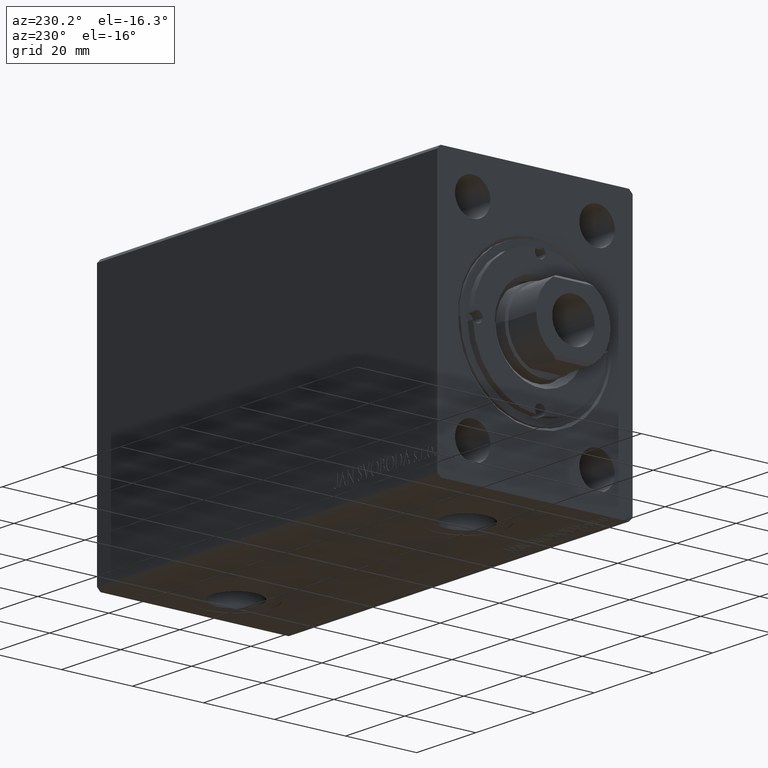
[diagram: clean part render]
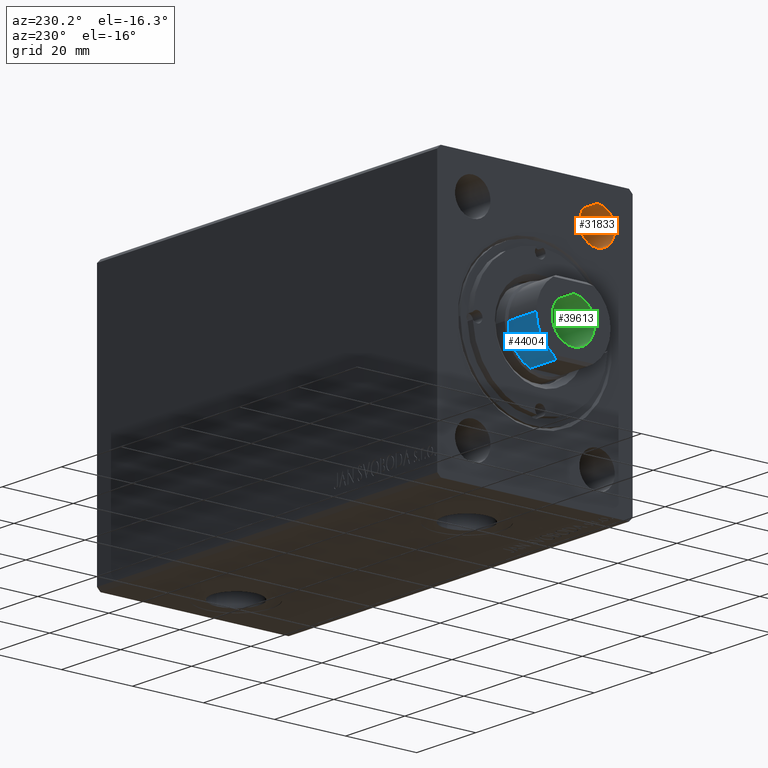
[diagram: same view with three faces highlighted in distinct colors, each labeled with its STEP entity id]
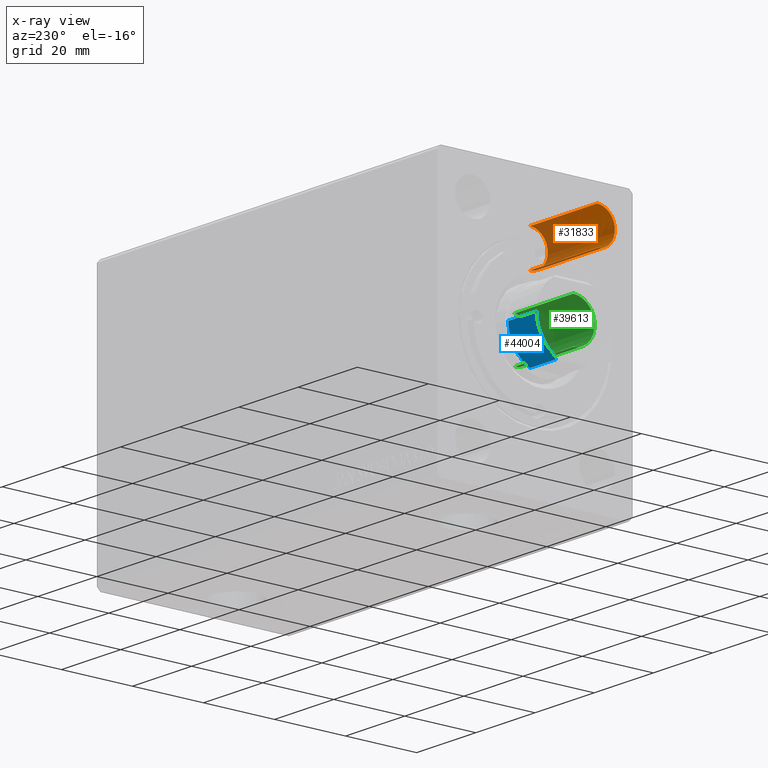
[diagram: x-ray of the same camera — body ghosted, the three highlighted faces saturated]
A machine part, auxiliary view with three faces highlighted in distinct colors.
The next image is the same camera in x-ray (body ghosted, the three faces saturated) — at least one of them is partly hidden behind the body in this view.
Their STEP definitions:

[orange] entity #31833 — the highlighted cylindrical surface (edge-blend (fillet) strip) has radius 5 mm, axis along (-1, -0, -0).
#757 = AXIS2_PLACEMENT_3D ( 'NONE', #25590, #8176, #15324 ) ;
#1197 = CARTESIAN_POINT ( 'NONE',  ( 0.000000000000000000, -17.50000000000000000, 22.50000000000000711 ) ) ;
#1198 = CARTESIAN_POINT ( 'NONE',  ( 1.224646799147350495E-16, -17.50000000000000000, 27.50000000000000355 ) ) ;
#6743 = CARTESIAN_POINT ( 'NONE',  ( 0.000000000000000000, -17.50000000000000000, 27.50000000000000355 ) ) ;
#7871 = CARTESIAN_POINT ( 'NONE',  ( 1.224646799147350495E-16, -17.50000000000000000, 22.50000000000000711 ) ) ;
#8176 = DIRECTION ( 'NONE',  ( -1.000000000000000000, -0.000000000000000000, -0.000000000000000000 ) ) ;
#9430 = ORIENTED_EDGE ( 'NONE', *, *, #24915, .F. ) ;
#10330 = LINE ( 'NONE', #27503, #13376 ) ;
#13376 = VECTOR ( 'NONE', #37807, 1000.000000000000000 ) ;
#14133 = FACE_OUTER_BOUND ( 'NONE', #40502, .T. ) ;
#14424 = LINE ( 'NONE', #1197, #33466 ) ;
#15324 = DIRECTION ( 'NONE',  ( 0.000000000000000000, 0.000000000000000000, 1.000000000000000000 ) ) ;
#15392 = EDGE_CURVE ( 'NONE', #31113, #24310, #10330, .T. ) ;
#15480 = ORIENTED_EDGE ( 'NONE', *, *, #18430, .T. ) ;
#17851 = VERTEX_POINT ( 'NONE', #31925 ) ;
#18430 = EDGE_CURVE ( 'NONE', #19340, #24310, #42008, .T. ) ;
#19340 = VERTEX_POINT ( 'NONE', #7871 ) ;
#20019 = CIRCLE ( 'NONE', #757, 4.999999999999997335 ) ;
#20282 = EDGE_CURVE ( 'NONE', #17851, #19340, #14424, .T. ) ;
#20616 = AXIS2_PLACEMENT_3D ( 'NONE', #6743, #34007, #27741 ) ;
#23617 = ORIENTED_EDGE ( 'NONE', *, *, #15392, .F. ) ;
#24310 = VERTEX_POINT ( 'NONE', #25096 ) ;
#24654 = DIRECTION ( 'NONE',  ( -1.000000000000000000, -0.000000000000000000, -0.000000000000000000 ) ) ;
#24915 = EDGE_CURVE ( 'NONE', #17851, #31113, #20019, .T. ) ;
#25096 = CARTESIAN_POINT ( 'NONE',  ( 1.224646799147350495E-16, -17.50000000000000000, 32.50000000000000000 ) ) ;
#25590 = CARTESIAN_POINT ( 'NONE',  ( 22.67000000000000171, -17.50000000000000000, 27.50000000000000355 ) ) ;
#27503 = CARTESIAN_POINT ( 'NONE',  ( 0.000000000000000000, -17.50000000000000000, 32.50000000000000000 ) ) ;
#27741 = DIRECTION ( 'NONE',  ( 0.000000000000000000, 0.000000000000000000, 1.000000000000000000 ) ) ;
#28460 = DIRECTION ( 'NONE',  ( -1.000000000000000000, -0.000000000000000000, -0.000000000000000000 ) ) ;
#31113 = VERTEX_POINT ( 'NONE', #34444 ) ;
#31833 = ADVANCED_FACE ( 'NONE', ( #14133 ), #37382, .F. ) ;
#31925 = CARTESIAN_POINT ( 'NONE',  ( 22.67000000000000171, -17.50000000000000000, 22.50000000000001066 ) ) ;
#33466 = VECTOR ( 'NONE', #24654, 1000.000000000000000 ) ;
#34007 = DIRECTION ( 'NONE',  ( -1.000000000000000000, -0.000000000000000000, -0.000000000000000000 ) ) ;
#34444 = CARTESIAN_POINT ( 'NONE',  ( 22.67000000000000171, -17.50000000000000000, 32.50000000000000000 ) ) ;
#36772 = ORIENTED_EDGE ( 'NONE', *, *, #20282, .T. ) ;
#37012 = AXIS2_PLACEMENT_3D ( 'NONE', #1198, #28460, #42087 ) ;
#37382 = CYLINDRICAL_SURFACE ( 'NONE', #20616, 4.999999999999997335 ) ;
#37807 = DIRECTION ( 'NONE',  ( -1.000000000000000000, -0.000000000000000000, -0.000000000000000000 ) ) ;
#40502 = EDGE_LOOP ( 'NONE', ( #9430, #36772, #15480, #23617 ) ) ;
#42008 = CIRCLE ( 'NONE', #37012, 4.999999999999997335 ) ;
#42087 = DIRECTION ( 'NONE',  ( 0.000000000000000000, 0.000000000000000000, 1.000000000000000000 ) ) ;

[blue] entity #44004 — the highlighted cylindrical surface (partial cylindrical patch) has radius 10.46 mm, axis along (-1, 0, 0).
#914 = LINE ( 'NONE', #21695, #18666 ) ;
#2022 = CARTESIAN_POINT ( 'NONE',  ( 0.000000000000000000, -10.46000000000001684, 98.00000000000000000 ) ) ;
#3399 = VECTOR ( 'NONE', #37991, 1000.000000000000000 ) ;
#3977 = CARTESIAN_POINT ( 'NONE',  ( 9.056889589612556080, -5.256118063110226224, 97.73311041038742530 ) ) ;
#4268 = DIRECTION ( 'NONE',  ( -0.000000000000000000, -1.815292619434271736E-16, 1.000000000000000000 ) ) ;
#4541 = EDGE_CURVE ( 'NONE', #21470, #16571, #20621, .T. ) ;
#4663 = CARTESIAN_POINT ( 'NONE',  ( 8.789999999999997371, -5.669876541865813024, 98.00000000000000000 ) ) ;
#6509 = ORIENTED_EDGE ( 'NONE', *, *, #17320, .T. ) ;
#7335 = CARTESIAN_POINT ( 'NONE',  ( 8.789999999999997371, -5.669876541865813024, 98.00000000000000000 ) ) ;
#8919 =( BOUNDED_CURVE ( )  B_SPLINE_CURVE ( 3, ( #13844, #35054, #3977, #7335 ),
 .UNSPECIFIED., .F., .T. ) 
 B_SPLINE_CURVE_WITH_KNOTS ( ( 4, 4 ),
 ( 3.573373807102884214, 3.714471135698167448 ),
 .UNSPECIFIED. ) 
 CURVE ( )  GEOMETRIC_REPRESENTATION_ITEM ( )  RATIONAL_B_SPLINE_CURVE ( ( 1.000000000000000000, 0.9983416499762383101, 0.9983416499762383101, 1.000000000000000000 ) ) 
 REPRESENTATION_ITEM ( '' )  );
#9300 = AXIS2_PLACEMENT_3D ( 'NONE', #28227, #41849, #11268 ) ;
#9909 = FACE_OUTER_BOUND ( 'NONE', #37420, .T. ) ;
#10156 = CARTESIAN_POINT ( 'NONE',  ( 0.000000000000000000, -1.778986767045586311E-14, 98.00000000000000000 ) ) ;
#10736 = LINE ( 'NONE', #24335, #3399 ) ;
#11268 = DIRECTION ( 'NONE',  ( 0.000000000000000000, -1.000000000000000000, 0.000000000000000000 ) ) ;
#11369 = AXIS2_PLACEMENT_3D ( 'NONE', #10156, #37406, #17291 ) ;
#11805 = ORIENTED_EDGE ( 'NONE', *, *, #35308, .T. ) ;
#12601 = DIRECTION ( 'NONE',  ( 0.000000000000000000, -1.000000000000000000, 0.000000000000000000 ) ) ;
#13844 = CARTESIAN_POINT ( 'NONE',  ( 9.500000000000000000, -4.377396486497445061, 97.29000000000003467 ) ) ;
#15959 = CARTESIAN_POINT ( 'NONE',  ( 0.000000000000000000, -1.778986767045586311E-14, 98.00000000000000000 ) ) ;
#16169 = DIRECTION ( 'NONE',  ( -0.000000000000000000, -1.815292619434271736E-16, 1.000000000000000000 ) ) ;
#16571 = VERTEX_POINT ( 'NONE', #4663 ) ;
#16833 = CYLINDRICAL_SURFACE ( 'NONE', #17985, 10.46000000000000085 ) ;
#17291 = DIRECTION ( 'NONE',  ( 0.000000000000000000, -1.000000000000000000, 0.000000000000000000 ) ) ;
#17320 = EDGE_CURVE ( 'NONE', #26560, #18791, #10736, .T. ) ;
#17985 = AXIS2_PLACEMENT_3D ( 'NONE', #15959, #16169, #12601 ) ;
#18666 = VECTOR ( 'NONE', #4268, 1000.000000000000000 ) ;
#18791 = VERTEX_POINT ( 'NONE', #20490 ) ;
#20490 = CARTESIAN_POINT ( 'NONE',  ( 9.500000000000000000, -4.377396486497445061, 97.29000000000003467 ) ) ;
#20621 = CIRCLE ( 'NONE', #11369, 10.45999999999999908 ) ;
#20999 = CARTESIAN_POINT ( 'NONE',  ( 1.314046015485110262E-15, -10.46000000000001684, 88.50000000000001421 ) ) ;
#21470 = VERTEX_POINT ( 'NONE', #2022 ) ;
#21695 = CARTESIAN_POINT ( 'NONE',  ( 0.000000000000000000, -10.46000000000001862, 98.00000000000000000 ) ) ;
#21897 = ORIENTED_EDGE ( 'NONE', *, *, #26897, .F. ) ;
#24335 = CARTESIAN_POINT ( 'NONE',  ( 9.500000000000000000, -4.377396486497445061, 98.00000000000000000 ) ) ;
#25680 = CIRCLE ( 'NONE', #9300, 10.46000000000000085 ) ;
#26560 = VERTEX_POINT ( 'NONE', #34705 ) ;
#26897 = EDGE_CURVE ( 'NONE', #43183, #21470, #914, .T. ) ;
#28227 = CARTESIAN_POINT ( 'NONE',  ( 0.000000000000000000, -1.606533968199330726E-14, 88.50000000000001421 ) ) ;
#29538 = ORIENTED_EDGE ( 'NONE', *, *, #4541, .F. ) ;
#33789 = ORIENTED_EDGE ( 'NONE', *, *, #38170, .T. ) ;
#34705 = CARTESIAN_POINT ( 'NONE',  ( 9.500000000000000000, -4.377396486497443284, 88.50000000000000000 ) ) ;
#35054 = CARTESIAN_POINT ( 'NONE',  ( 9.293949384395535418, -4.824575729748651121, 97.49605061560447439 ) ) ;
#35308 = EDGE_CURVE ( 'NONE', #43183, #26560, #25680, .T. ) ;
#37406 = DIRECTION ( 'NONE',  ( -0.000000000000000000, -1.815292619434271736E-16, 1.000000000000000000 ) ) ;
#37420 = EDGE_LOOP ( 'NONE', ( #21897, #11805, #6509, #33789, #29538 ) ) ;
#37991 = DIRECTION ( 'NONE',  ( -0.000000000000000000, -1.815292619434271736E-16, 1.000000000000000000 ) ) ;
#38170 = EDGE_CURVE ( 'NONE', #18791, #16571, #8919, .T. ) ;
#41849 = DIRECTION ( 'NONE',  ( -0.000000000000000000, -1.815292619434271736E-16, 1.000000000000000000 ) ) ;
#43183 = VERTEX_POINT ( 'NONE', #20999 ) ;
#44004 = ADVANCED_FACE ( 'NONE', ( #9909 ), #16833, .T. ) ;

[green] entity #39613 — the highlighted cylindrical surface (edge-blend (fillet) strip) has radius 6 mm, axis along (-1, 0, 0).
#1709 = DIRECTION ( 'NONE',  ( 1.000000000000000000, 0.000000000000000000, 0.000000000000000000 ) ) ;
#2222 = EDGE_CURVE ( 'NONE', #6669, #31228, #11005, .T. ) ;
#4948 = DIRECTION ( 'NONE',  ( 1.000000000000000000, 0.000000000000000000, 0.000000000000000000 ) ) ;
#6391 = VECTOR ( 'NONE', #38481, 1000.000000000000000 ) ;
#6669 = VERTEX_POINT ( 'NONE', #36791 ) ;
#7260 = DIRECTION ( 'NONE',  ( 0.000000000000000000, 0.000000000000000000, 1.000000000000000000 ) ) ;
#10785 = DIRECTION ( 'NONE',  ( -0.000000000000000000, -0.000000000000000000, 1.000000000000000000 ) ) ;
#11005 = LINE ( 'NONE', #24599, #6391 ) ;
#11374 = EDGE_CURVE ( 'NONE', #16225, #31228, #13378, .T. ) ;
#12336 = DIRECTION ( 'NONE',  ( 0.000000000000000000, 0.000000000000000000, 1.000000000000000000 ) ) ;
#13378 = CIRCLE ( 'NONE', #21225, 6.000000000000000888 ) ;
#13969 = CARTESIAN_POINT ( 'NONE',  ( 6.000000000000000888, -1.778986767045586311E-14, 78.00000000000000000 ) ) ;
#14359 = CARTESIAN_POINT ( 'NONE',  ( -6.000000000000000888, -1.705507959096744907E-14, 98.00000000000000000 ) ) ;
#14865 = DIRECTION ( 'NONE',  ( 1.000000000000000000, 0.000000000000000000, 0.000000000000000000 ) ) ;
#15147 = FACE_OUTER_BOUND ( 'NONE', #35369, .T. ) ;
#16225 = VERTEX_POINT ( 'NONE', #38251 ) ;
#18463 = ORIENTED_EDGE ( 'NONE', *, *, #27591, .T. ) ;
#18539 = AXIS2_PLACEMENT_3D ( 'NONE', #24894, #7260, #14865 ) ;
#19389 = VECTOR ( 'NONE', #10785, 1000.000000000000000 ) ;
#21225 = AXIS2_PLACEMENT_3D ( 'NONE', #43122, #12336, #4948 ) ;
#22429 = EDGE_CURVE ( 'NONE', #32453, #6669, #37796, .T. ) ;
#23931 = ORIENTED_EDGE ( 'NONE', *, *, #11374, .T. ) ;
#24599 = CARTESIAN_POINT ( 'NONE',  ( -6.000000000000000888, -1.705507959096744907E-14, 78.00000000000000000 ) ) ;
#24894 = CARTESIAN_POINT ( 'NONE',  ( 0.000000000000000000, -1.778986767045586311E-14, 78.00000000000000000 ) ) ;
#25188 = DIRECTION ( 'NONE',  ( -0.000000000000000000, -0.000000000000000000, 1.000000000000000000 ) ) ;
#27591 = EDGE_CURVE ( 'NONE', #32453, #16225, #41367, .T. ) ;
#27968 = CARTESIAN_POINT ( 'NONE',  ( 6.000000000000000888, -1.778986767045586311E-14, 78.00000000000000000 ) ) ;
#31228 = VERTEX_POINT ( 'NONE', #14359 ) ;
#31749 = ORIENTED_EDGE ( 'NONE', *, *, #2222, .F. ) ;
#32119 = CARTESIAN_POINT ( 'NONE',  ( 0.000000000000000000, -1.778986767045586311E-14, 78.00000000000000000 ) ) ;
#32453 = VERTEX_POINT ( 'NONE', #13969 ) ;
#35032 = CYLINDRICAL_SURFACE ( 'NONE', #39291, 6.000000000000000888 ) ;
#35369 = EDGE_LOOP ( 'NONE', ( #31749, #39631, #18463, #23931 ) ) ;
#36791 = CARTESIAN_POINT ( 'NONE',  ( -6.000000000000000888, -1.705507959096744907E-14, 78.00000000000000000 ) ) ;
#37796 = CIRCLE ( 'NONE', #18539, 6.000000000000000888 ) ;
#38251 = CARTESIAN_POINT ( 'NONE',  ( 6.000000000000000888, -1.778986767045586311E-14, 98.00000000000000000 ) ) ;
#38481 = DIRECTION ( 'NONE',  ( -0.000000000000000000, -0.000000000000000000, 1.000000000000000000 ) ) ;
#39291 = AXIS2_PLACEMENT_3D ( 'NONE', #32119, #25188, #1709 ) ;
#39613 = ADVANCED_FACE ( 'NONE', ( #15147 ), #35032, .F. ) ;
#39631 = ORIENTED_EDGE ( 'NONE', *, *, #22429, .F. ) ;
#41367 = LINE ( 'NONE', #27968, #19389 ) ;
#43122 = CARTESIAN_POINT ( 'NONE',  ( 0.000000000000000000, -1.778986767045586311E-14, 98.00000000000000000 ) ) ;